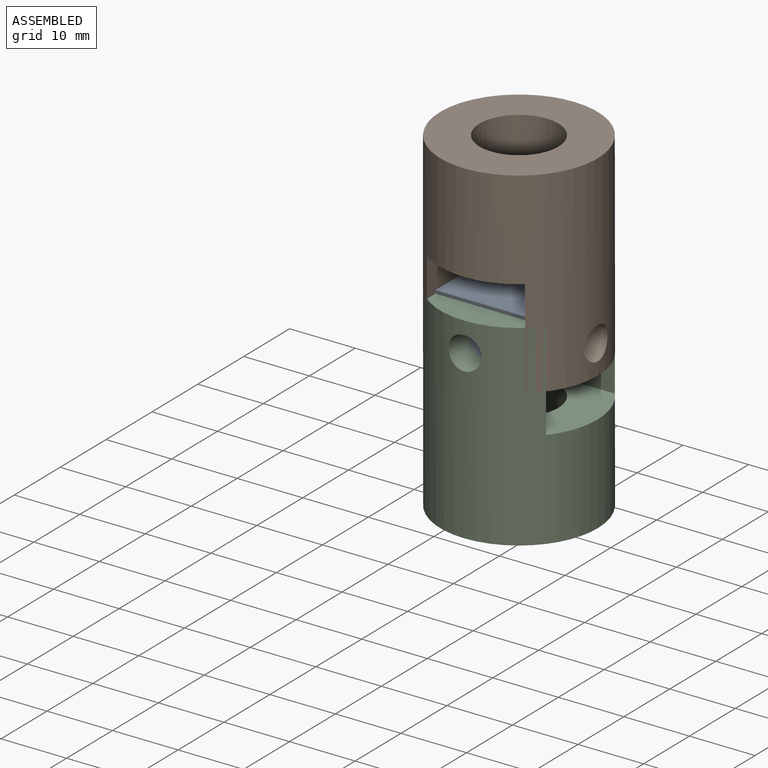
[diagram: assembled view]
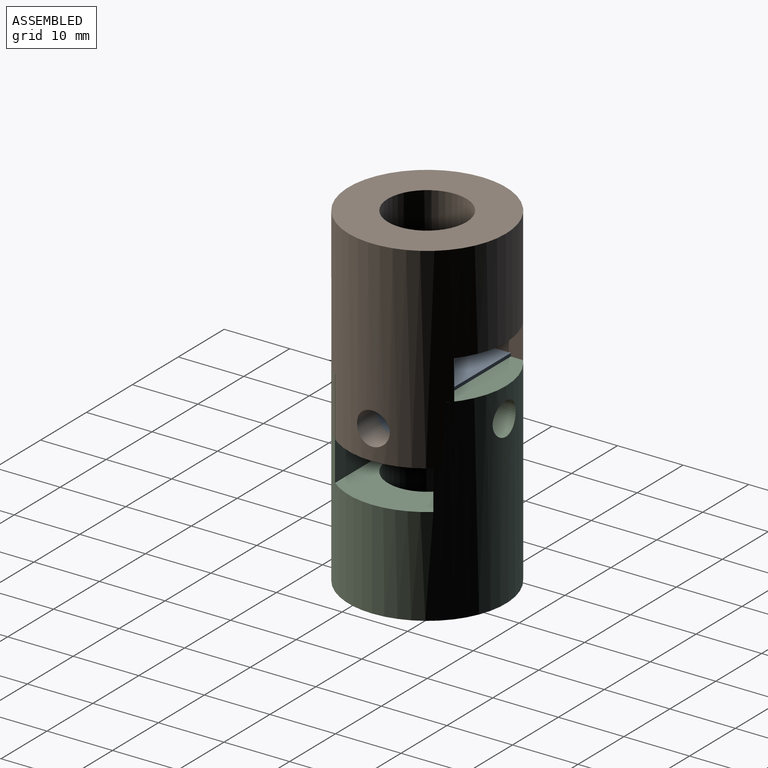
[diagram: assembled view, second angle]
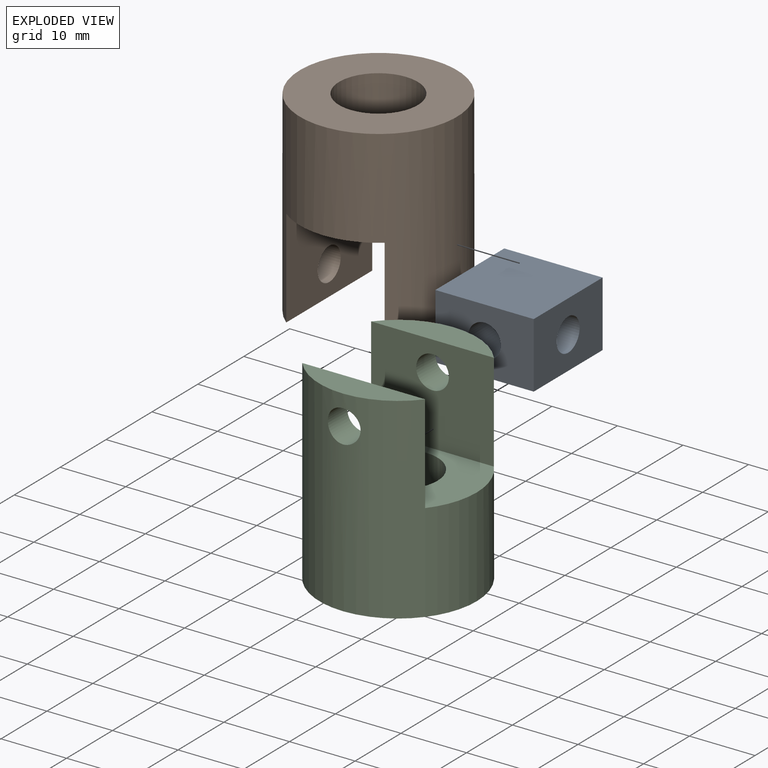
[diagram: exploded view]
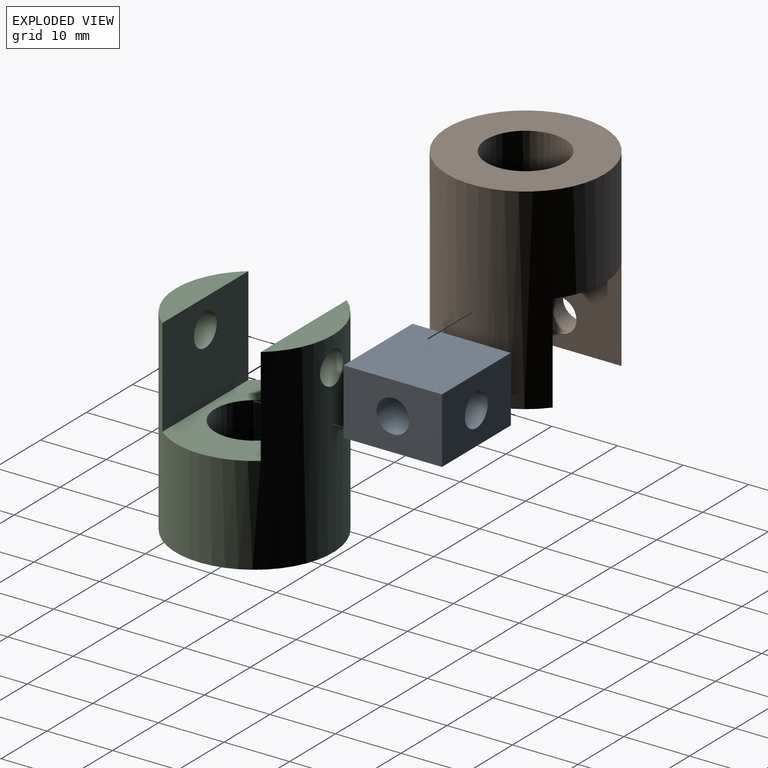
[diagram: exploded view, second angle]
ASSEMBLY  parts=3 mates=2
PART A: 10 faces, bbox 15x10x15 mm
  f0: cylinder r=2.5mm len=7.5mm, axis (1,0,0), area 92.8mm2, adj f2,f8,f9
  f1: plane 15x10mm, normal (0,0,-1), area 130.4mm2, adj f2,f4,f5,f6,f9
  f2: plane 15x10mm, normal (1,0,0), area 130.4mm2, adj f0,f1,f3,f5,f6
  f3: plane 15x10mm, normal (0,0,1), area 130.4mm2, adj f2,f4,f5,f6,f8
  f4: plane 15x10mm, normal (-1,0,0), area 130.4mm2, adj f1,f3,f5,f6,f7
  f5: plane 15x15mm, normal (0,-1,0), area 225mm2, adj f1,f2,f3,f4
  f6: plane 15x15mm, normal (0,1,0), area 225mm2, adj f1,f2,f3,f4
  f7: cylinder r=2.5mm len=7.5mm, axis (1,0,0), area 92.8mm2, adj f4,f8,f9
  f8: cylinder r=2.5mm len=7.5mm, axis (0,0,1), area 92.8mm2, adj f0,f3,f7
  f9: cylinder r=2.5mm len=7.5mm, axis (0,0,1), area 92.8mm2, adj f0,f1,f7
PART B: 10 faces, bbox 24x30x24 mm
  f0: cylinder r=12mm len=30mm, axis (0,1,0), area 1736.4mm2, adj f1,f3,f4,f5,f6,f7,f8,f9
  f1: plane 18.74x4.5mm, normal (0,1,0), area 58.7mm2, adj f0,f6
  f2: cylinder r=6mm len=15mm, axis (0,1,0), area 565.5mm2, adj f3,f5
  f3: plane 24x24mm, normal (0,-1,0), area 339.3mm2, adj f0,f2
  f4: plane 18.74x4.5mm, normal (0,1,0), area 58.7mm2, adj f0,f7
  f5: plane 24x15mm, normal (0,1,0), area 221.9mm2, adj f0,f2,f6,f7
  f6: plane 18.74x15mm, normal (0,0,1), area 261.4mm2, adj f0,f1,f5,f9
  f7: plane 18.74x15mm, normal (0,0,-1), area 261.4mm2, adj f0,f4,f5,f8
  f8: cylinder r=2.5mm len=5mm, axis (0,0,1), area 68.6mm2, adj f0,f7
  f9: cylinder r=2.5mm len=5mm, axis (0,0,1), area 68.6mm2, adj f0,f6
PART C: same geometry as B
PLACE A rot(axis=(0.58,-0.58,-0.58),120deg) t=(0,0,25.5)mm
PLACE B rot(axis=(-0.58,-0.58,0.58),120deg) t=(0,0,21)mm
PLACE C rot(axis=(1,0,0),90deg) t=(0,0,30)mm
MATE revolute A.f8 <-> B.f8  axis (-1,0,0) through (-7.5,0,25.5)mm
MATE revolute C.f8 <-> A.f0  axis (0,-1,0) through (0,7.5,25.5)mm
